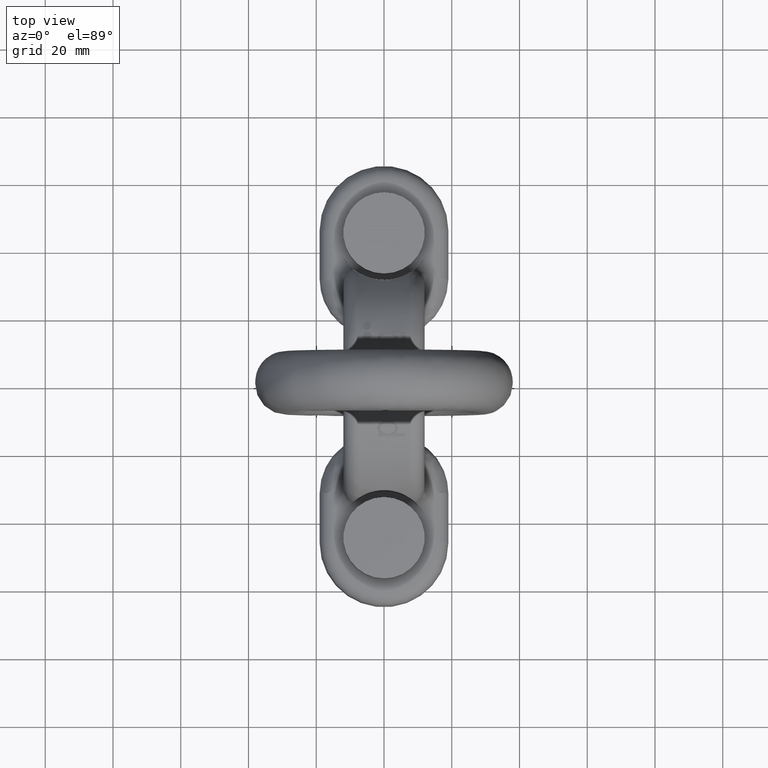
[diagram: clean part render]
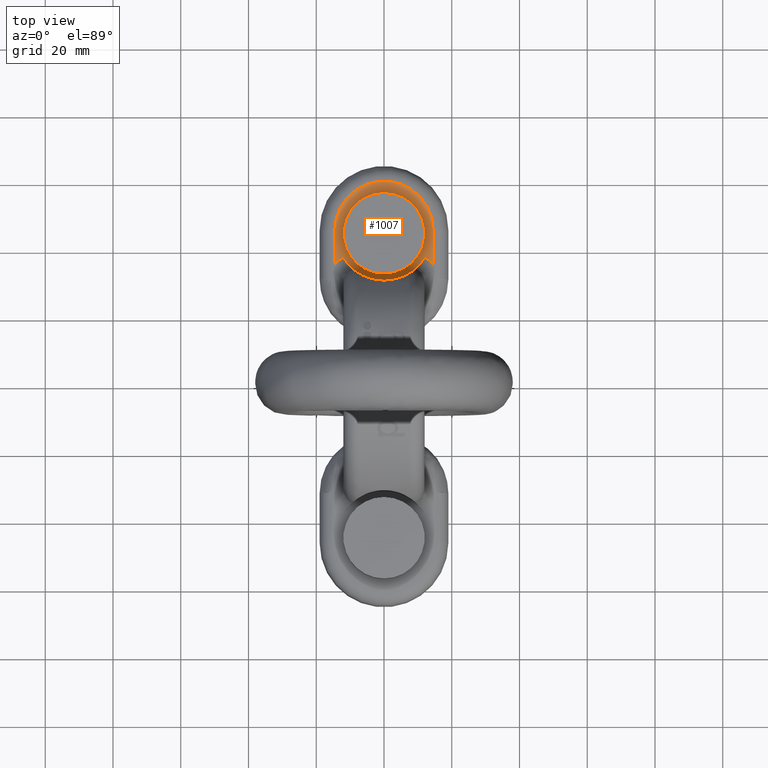
[diagram: same view with one face highlighted and labeled with its STEP entity id]
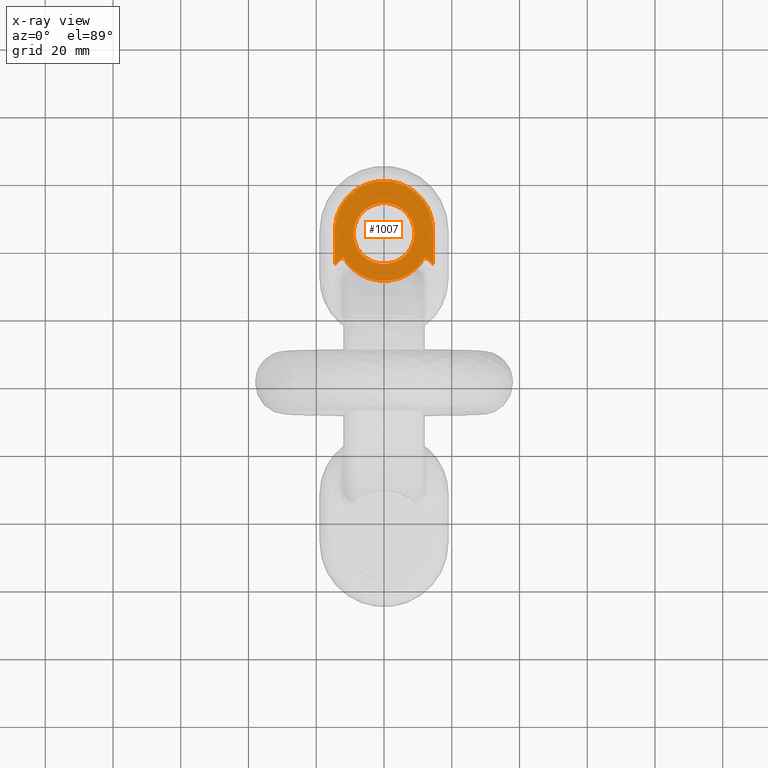
[diagram: x-ray of the same camera — body ghosted, the highlighted face saturated]
A machine part, top view. The second image highlights one B-rep face of the part: STEP entity #1007.
The next image is the same camera in x-ray: the body ghosted, the highlighted face saturated — about 0% of this face is hidden behind the body in this view.
In plain terms, the highlighted planar face has unit normal (0, 0, -1).
Its self-contained STEP definition (entity closure, byte-faithful):
#749=PLANE('',#3632);
#1007=ADVANCED_FACE('',(#1485,#1486),#749,.F.);
#1230=LINE('',#5348,#1344);
#1231=LINE('',#5352,#1345);
#1344=VECTOR('',#3937,1.);
#1345=VECTOR('',#3940,1.);
#1485=FACE_BOUND('',#1554,.T.);
#1486=FACE_BOUND('',#1555,.T.);
#1554=EDGE_LOOP('',(#2210));
#1555=EDGE_LOOP('',(#2211,#2212,#2213,#2214,#2215,#2216));
#1789=B_SPLINE_CURVE_WITH_KNOTS('',3,(#5196,#5197,#5198,#5199),
 .UNSPECIFIED.,.F.,.F.,(4,4),(0.,1.),.UNSPECIFIED.);
#1791=B_SPLINE_CURVE_WITH_KNOTS('',3,(#5221,#5222,#5223,#5224),
 .UNSPECIFIED.,.F.,.F.,(4,4),(0.,1.),.UNSPECIFIED.);
#1999=CIRCLE('',#3629,9.);
#2000=CIRCLE('',#3630,14.);
#2001=CIRCLE('',#3631,14.5);
#2210=ORIENTED_EDGE('',*,*,#3276,.F.);
#2211=ORIENTED_EDGE('',*,*,#3277,.T.);
#2212=ORIENTED_EDGE('',*,*,#3225,.T.);
#2213=ORIENTED_EDGE('',*,*,#3278,.T.);
#2214=ORIENTED_EDGE('',*,*,#3279,.T.);
#2215=ORIENTED_EDGE('',*,*,#3280,.T.);
#2216=ORIENTED_EDGE('',*,*,#3221,.T.);
#2952=VERTEX_POINT('',#5195);
#2953=VERTEX_POINT('',#5200);
#2954=VERTEX_POINT('',#5218);
#2955=VERTEX_POINT('',#5220);
#2996=VERTEX_POINT('',#5346);
#2997=VERTEX_POINT('',#5349);
#2998=VERTEX_POINT('',#5351);
#3221=EDGE_CURVE('',#2953,#2952,#1789,.T.);
#3225=EDGE_CURVE('',#2954,#2955,#1791,.T.);
#3276=EDGE_CURVE('',#2996,#2996,#1999,.T.);
#3277=EDGE_CURVE('',#2952,#2954,#2000,.T.);
#3278=EDGE_CURVE('',#2955,#2997,#1230,.T.);
#3279=EDGE_CURVE('',#2997,#2998,#2001,.T.);
#3280=EDGE_CURVE('',#2998,#2953,#1231,.T.);
#3629=AXIS2_PLACEMENT_3D('',#5345,#3933,#3934);
#3630=AXIS2_PLACEMENT_3D('',#5347,#3935,#3936);
#3631=AXIS2_PLACEMENT_3D('',#5350,#3938,#3939);
#3632=AXIS2_PLACEMENT_3D('',#5353,#3941,#3942);
#3933=DIRECTION('',(0.,0.,1.));
#3934=DIRECTION('',(1.,0.,0.));
#3935=DIRECTION('',(0.,0.,1.));
#3936=DIRECTION('',(1.,0.,0.));
#3937=DIRECTION('',(0.,1.,5.78241158658936E-16));
#3938=DIRECTION('',(0.,-5.78241158658936E-16,1.));
#3939=DIRECTION('',(0.,1.,4.78544407166016E-16));
#3940=DIRECTION('',(0.,-1.,-5.78241158658936E-16));
#3941=DIRECTION('',(0.,5.78241158658936E-16,-1.));
#3942=DIRECTION('',(0.,1.,5.79397640976254E-16));
#5195=CARTESIAN_POINT('',(-12.1051401613574,37.9668227895287,20.));
#5196=CARTESIAN_POINT('',(-14.5,35.875731479916,20.));
#5197=CARTESIAN_POINT('',(-13.8274725692556,36.7144629287289,20.));
#5198=CARTESIAN_POINT('',(-13.024510613553,37.4154584925979,20.));
#5199=CARTESIAN_POINT('',(-12.1051401613575,37.966822789529,20.));
#5200=CARTESIAN_POINT('',(-14.5,35.875731479916,20.));
#5218=CARTESIAN_POINT('',(12.1051401613575,37.966822789529,20.));
#5220=CARTESIAN_POINT('',(14.5,35.875731479916,20.));
#5221=CARTESIAN_POINT('',(12.1051401613575,37.966822789529,20.));
#5222=CARTESIAN_POINT('',(13.011567076695,37.4232209827698,20.));
#5223=CARTESIAN_POINT('',(13.8297664566723,36.7116021450219,20.));
#5224=CARTESIAN_POINT('',(14.5,35.875731479916,20.));
#5345=CARTESIAN_POINT('',(0.,45.,20.));
#5346=CARTESIAN_POINT('',(9.,45.,20.));
#5347=CARTESIAN_POINT('',(0.,45.,20.));
#5348=CARTESIAN_POINT('',(14.5,65.,20.));
#5349=CARTESIAN_POINT('',(14.5,46.,20.));
#5350=CARTESIAN_POINT('',(-6.93889390390723E-15,46.,20.));
#5351=CARTESIAN_POINT('',(-14.5,46.,20.));
#5352=CARTESIAN_POINT('',(-14.5,65.,20.));
#5353=CARTESIAN_POINT('',(38.,65.,20.));